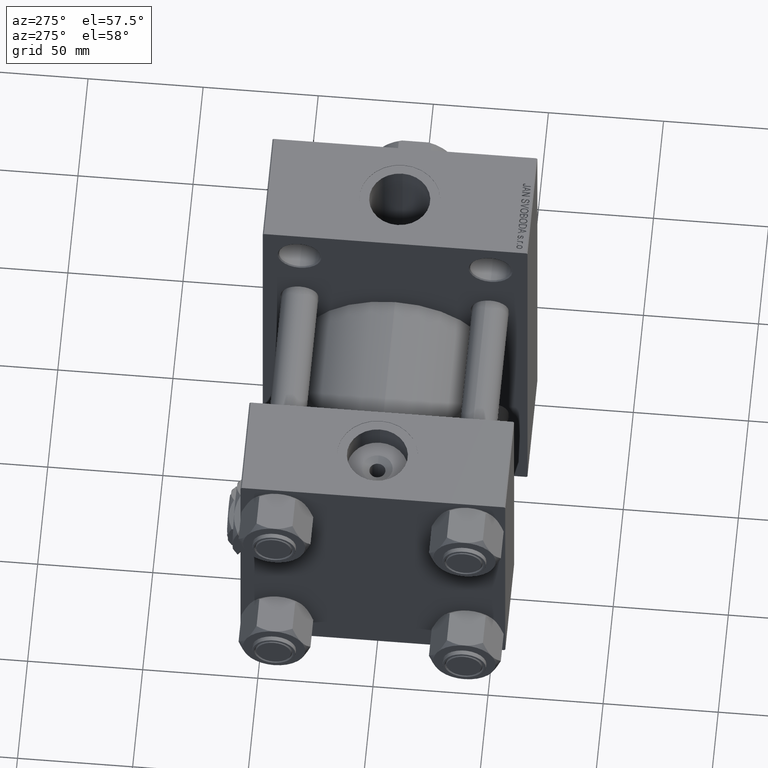
[diagram: clean part render]
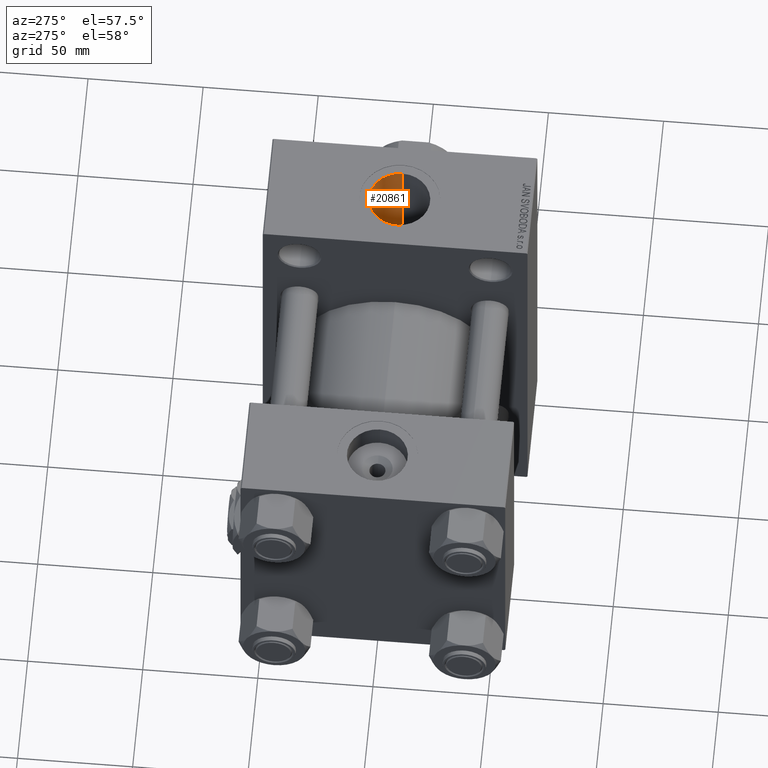
[diagram: same view with one face highlighted and labeled with its STEP entity id]
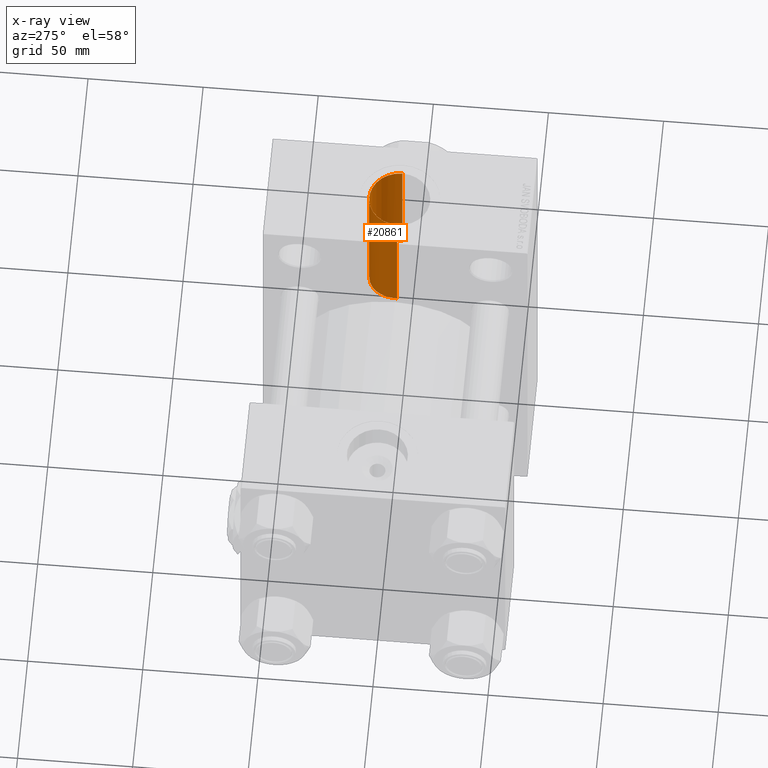
[diagram: x-ray of the same camera — body ghosted, the highlighted face saturated]
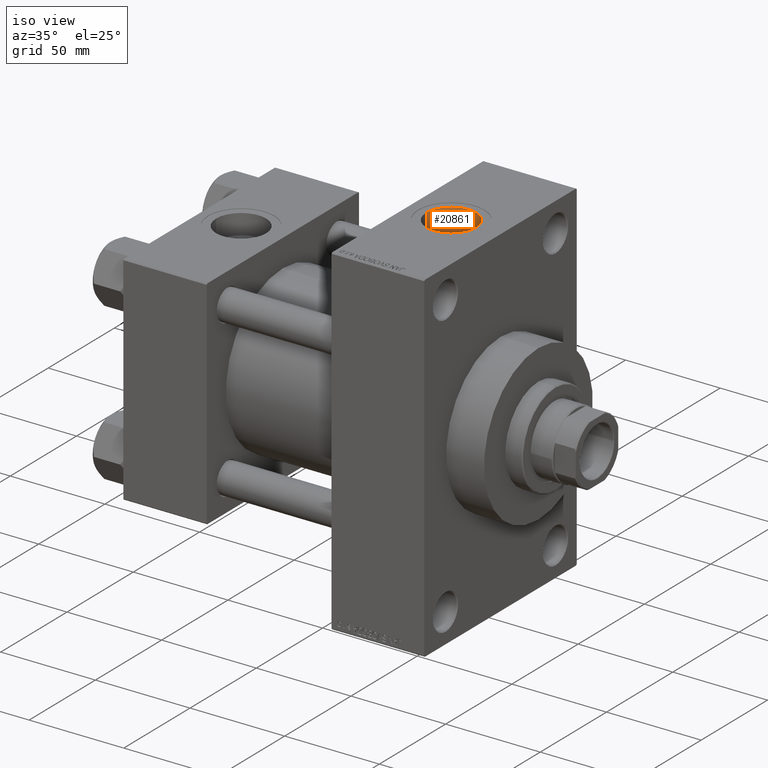
[diagram: same view with one face highlighted and labeled with its STEP entity id]
A machine part, auxiliary view. The second image highlights one B-rep face of the part: STEP entity #20861.
The next image is the same camera in x-ray: the body ghosted, the highlighted face saturated — about 4% of this face is hidden behind the body in this view.
A second angle (iso view) of the same face is appended — the face is thin or edge-on in the first view.
In plain terms, the highlighted cylindrical surface (edge-blend (fillet) strip) has radius 13.22 mm, axis along (0, 0, -1).
Its self-contained STEP definition (entity closure, byte-faithful):
#187 = CARTESIAN_POINT ( 'NONE',  ( 146.1379817546421691, 1.518265865167179207, 35.96994912351961204 ) ) ;
#690 = CARTESIAN_POINT ( 'NONE',  ( 138.5945103277782380, 12.00118958920803358, 33.94198458417640296 ) ) ;
#1151 = CARTESIAN_POINT ( 'NONE',  ( 133.2851615108020553, 13.22613998524883705, 27.48307289366608686 ) ) ;
#1636 = CARTESIAN_POINT ( 'NONE',  ( 120.3594029954051905, 3.901785162874668700, 30.25300952143916078 ) ) ;
#2578 = VERTEX_POINT ( 'NONE', #17248 ) ;
#3687 = CARTESIAN_POINT ( 'NONE',  ( 146.0893087182808188, 1.892035420910301413, 35.95216273564661691 ) ) ;
#4220 = FACE_OUTER_BOUND ( 'NONE', #8702, .T. ) ;
#4523 = ORIENTED_EDGE ( 'NONE', *, *, #47169, .F. ) ;
#4893 = CARTESIAN_POINT ( 'NONE',  ( 126.2405905081905644, 11.37158902866327814, 28.30223178644141413 ) ) ;
#7336 = EDGE_CURVE ( 'NONE', #28247, #2578, #30121, .T. ) ;
#7438 = CARTESIAN_POINT ( 'NONE',  ( 136.4867003901545388, 12.77473711426743463, 33.65761171941714736 ) ) ;
#8641 = CARTESIAN_POINT ( 'NONE',  ( 125.0371891369869957, 10.56380609296689244, 28.61398279029831215 ) ) ;
#8702 = EDGE_LOOP ( 'NONE', ( #4523, #19163, #47742, #11129, #22175, #34461 ) ) ;
#9136 = CARTESIAN_POINT ( 'NONE',  ( 122.9260598174467134, 8.574286465039120841, 29.27263374885120584 ) ) ;
#9203 = VECTOR ( 'NONE', #27749, 1000.000000000000000 ) ;
#9614 = CARTESIAN_POINT ( 'NONE',  ( 122.0260244560768399, 7.434870375886652560, 29.59044782374041560 ) ) ;
#11129 = ORIENTED_EDGE ( 'NONE', *, *, #29228, .T. ) ;
#11439 = CARTESIAN_POINT ( 'NONE',  ( 145.3223465543050565, 4.803346231252604071, 35.67993160896549654 ) ) ;
#11755 = VERTEX_POINT ( 'NONE', #19735 ) ;
#11988 = CARTESIAN_POINT ( 'NONE',  ( 135.7400000000000091, 12.93293470176046789, 112.7999999999999829 ) ) ;
#12646 = CARTESIAN_POINT ( 'NONE',  ( 121.5110741800254033, 6.613878971456260913, 29.78798023624082703 ) ) ;
#13038 = CARTESIAN_POINT ( 'NONE',  ( 146.2200000000000273, -9.241894346338509984E-15, 89.79999999999998295 ) ) ;
#13130 = CARTESIAN_POINT ( 'NONE',  ( 120.6830193899776873, 4.827070409900206194, 30.11922814116230995 ) ) ;
#13580 = VERTEX_POINT ( 'NONE', #13038 ) ;
#13604 = CARTESIAN_POINT ( 'NONE',  ( 123.2493793498786232, 8.940352169284475181, 29.16250894268883087 ) ) ;
#14094 = CARTESIAN_POINT ( 'NONE',  ( 119.7800000000000011, -1.086087741481131350E-14, 112.7999999999999829 ) ) ;
#15189 = CARTESIAN_POINT ( 'NONE',  ( 141.1482271659914431, 10.43671964436604682, 34.45770319535726145 ) ) ;
#15330 = AXIS2_PLACEMENT_3D ( 'NONE', #38454, #16181, #39212 ) ;
#15932 = CARTESIAN_POINT ( 'NONE',  ( 140.5493998682713084, 10.87852352895258434, 34.31951962323488914 ) ) ;
#16181 = DIRECTION ( 'NONE',  ( -0.000000000000000000, -0.000000000000000000, -1.000000000000000000 ) ) ;
#16399 = CARTESIAN_POINT ( 'NONE',  ( 133.7777193278498942, 13.20633922326214638, 27.49264203546940522 ) ) ;
#16645 = CARTESIAN_POINT ( 'NONE',  ( 119.8074965746004494, 0.9872482238805195820, 30.48805017778670390 ) ) ;
#16890 = CARTESIAN_POINT ( 'NONE',  ( 124.2896176093950658, 9.956384615881475497, 28.83096279477900836 ) ) ;
#17132 = CARTESIAN_POINT ( 'NONE',  ( 119.7800000000000153, 0.4930897905089530742, 30.50000000000000000 ) ) ;
#17248 = CARTESIAN_POINT ( 'NONE',  ( 119.7800000000000011, 3.735152335644797090E-15, 30.50000000000000000 ) ) ;
#18329 = VECTOR ( 'NONE', #29869, 1000.000000000000000 ) ;
#19163 = ORIENTED_EDGE ( 'NONE', *, *, #35441, .F. ) ;
#19323 = CIRCLE ( 'NONE', #15330, 13.22000000000000952 ) ;
#19707 = CARTESIAN_POINT ( 'NONE',  ( 135.7400000000000091, 12.93293470176046789, 33.59671412504502541 ) ) ;
#19735 = CARTESIAN_POINT ( 'NONE',  ( 135.7399999999999523, 12.93293470176048032, 27.62225914004861949 ) ) ;
#20160 = CARTESIAN_POINT ( 'NONE',  ( 130.3256342958763412, 12.95594869095344137, 27.61177267963251580 ) ) ;
#20861 = ADVANCED_FACE ( 'NONE', ( #4220 ), #35505, .F. ) ;
#20888 = CARTESIAN_POINT ( 'NONE',  ( 127.9827127633823238, 12.27015841204414492, 27.92701712990832519 ) ) ;
#22175 = ORIENTED_EDGE ( 'NONE', *, *, #40694, .F. ) ;
#23723 = LINE ( 'NONE', #23979, #9203 ) ;
#23902 = CARTESIAN_POINT ( 'NONE',  ( 125.4271501200176289, 10.84687044312921422, 28.50745100355764805 ) ) ;
#23979 = CARTESIAN_POINT ( 'NONE',  ( 146.2200000000000273, -9.241894346338509984E-15, 112.7999999999999829 ) ) ;
#24405 = CARTESIAN_POINT ( 'NONE',  ( 126.6661582615323312, 11.61426874580966384, 28.20310319464547533 ) ) ;
#24644 = CARTESIAN_POINT ( 'NONE',  ( 130.8119409645370581, 13.04724532387754010, 27.56854024737252118 ) ) ;
#26464 = CARTESIAN_POINT ( 'NONE',  ( 144.6983450057128380, 6.168928695871318979, 35.46904263421720316 ) ) ;
#26514 = LINE ( 'NONE', #11988, #27469 ) ;
#26710 = CARTESIAN_POINT ( 'NONE',  ( 146.2200000000000557, 0.3819698288429393962, 36.00000000000000000 ) ) ;
#26959 = CARTESIAN_POINT ( 'NONE',  ( 143.0210832298416221, 8.630590761265732880, 34.95143037011762743 ) ) ;
#27210 = CARTESIAN_POINT ( 'NONE',  ( 142.2544909056830136, 9.447833359205604964, 34.73924717178599764 ) ) ;
#27469 = VECTOR ( 'NONE', #39018, 1000.000000000000000 ) ;
#27749 = DIRECTION ( 'NONE',  ( 0.000000000000000000, 0.000000000000000000, -1.000000000000000000 ) ) ;
#27761 = CARTESIAN_POINT ( 'NONE',  ( 133.0000000000000000, -1.086087741481131350E-14, 112.7999999999999829 ) ) ;
#27912 = CARTESIAN_POINT ( 'NONE',  ( 135.2536187678447277, 13.03598049970485384, 27.57401237756085877 ) ) ;
#28247 = VERTEX_POINT ( 'NONE', #33278 ) ;
#28640 = CARTESIAN_POINT ( 'NONE',  ( 120.8710626762529188, 5.282033915368367083, 30.04254330308663157 ) ) ;
#29228 = EDGE_CURVE ( 'NONE', #2578, #11755, #34836, .T. ) ;
#29869 = DIRECTION ( 'NONE',  ( 0.000000000000000000, 0.000000000000000000, -1.000000000000000000 ) ) ;
#30121 = LINE ( 'NONE', #14094, #18329 ) ;
#31403 = B_SPLINE_CURVE_WITH_KNOTS ( 'NONE', 3,
 ( #19707, #7438, #34457, #690, #34966, #15932, #15189, #45466, #27210, #45717, #26959, #34210, #42463, #26464, #38215, #37973, #11439, #49460, #45966, #3687, #187, #38712, #26710, #42211 ),
 .UNSPECIFIED., .F., .F.,
 ( 4, 2, 2, 2, 2, 2, 2, 2, 2, 2, 2, 4 ),
 ( 0.000000000000000000, 0.002262540966026163961, 0.004525081932052327921, 0.006787622898078491882, 0.007918893381091541769, 0.009050163864104589923, 0.01131270483013063592, 0.01244397531314365979, 0.01357524579615668192, 0.01583778676218276088, 0.01696905724519580036, 0.01810032772820883984 ),
 .UNSPECIFIED. ) ;
#31672 = CARTESIAN_POINT ( 'NONE',  ( 134.7607663062244967, 13.11151955524789869, 27.53798861069347836 ) ) ;
#32163 = CARTESIAN_POINT ( 'NONE',  ( 128.8969839307879113, 12.60537237624625284, 27.77446624569849121 ) ) ;
#33278 = CARTESIAN_POINT ( 'NONE',  ( 119.7800000000000011, -1.086087741481131350E-14, 89.79999999999998295 ) ) ;
#34210 = CARTESIAN_POINT ( 'NONE',  ( 143.7312113704628018, 7.757108125705393320, 35.15943117783078264 ) ) ;
#34343 = VERTEX_POINT ( 'NONE', #38506 ) ;
#34457 = CARTESIAN_POINT ( 'NONE',  ( 137.2060821151613368, 12.55531642788236191, 33.74093801992368213 ) ) ;
#34461 = ORIENTED_EDGE ( 'NONE', *, *, #42010, .T. ) ;
#34836 = B_SPLINE_CURVE_WITH_KNOTS ( 'NONE', 3,
 ( #35670, #17132, #16645, #43405, #47402, #43881, #1636, #13130, #28640, #12646, #9614, #9136, #13604, #42926, #16890, #8641, #23902, #4893, #24405, #20888, #32163, #20160, #24644, #35417, #39907, #1151, #16399, #31672, #27912, #43167 ),
 .UNSPECIFIED., .F., .F.,
 ( 4, 2, 2, 2, 2, 2, 2, 2, 2, 2, 2, 2, 2, 2, 4 ),
 ( 0.04185757538675117378, 0.04333653936425789499, 0.04481550334176462314, 0.04629446731927134434, 0.04777343129677806555, 0.05073135925179152877, 0.05221032322929827774, 0.05368928720680501976, 0.05516825118431176178, 0.05664721516181851074, 0.05960514311683192540, 0.06108410709433867436, 0.06256307107184543026, 0.06404203504935218616, 0.06552099902685892818 ),
 .UNSPECIFIED. ) ;
#34966 = CARTESIAN_POINT ( 'NONE',  ( 139.2649626807106813, 11.66558850424325300, 34.06003150599316598 ) ) ;
#35254 = DIRECTION ( 'NONE',  ( 0.000000000000000000, 0.000000000000000000, -1.000000000000000000 ) ) ;
#35417 = CARTESIAN_POINT ( 'NONE',  ( 131.8033419719260166, 13.17521242515510771, 27.50761348180683896 ) ) ;
#35441 = EDGE_CURVE ( 'NONE', #28247, #13580, #19323, .T. ) ;
#35505 = CYLINDRICAL_SURFACE ( 'NONE', #36327, 13.22000000000000952 ) ;
#35670 = CARTESIAN_POINT ( 'NONE',  ( 119.7800000000000011, 3.735152335644797090E-15, 30.50000000000000000 ) ) ;
#36327 = AXIS2_PLACEMENT_3D ( 'NONE', #27761, #35254, #42502 ) ;
#37572 = CARTESIAN_POINT ( 'NONE',  ( 146.2200000000000273, 4.408731805096607676E-15, 36.00000000000000000 ) ) ;
#37973 = CARTESIAN_POINT ( 'NONE',  ( 145.1796393711020414, 5.154167772853381457, 35.63079688237383635 ) ) ;
#38215 = CARTESIAN_POINT ( 'NONE',  ( 144.8678405391319188, 5.836387716606548537, 35.52542343625400179 ) ) ;
#38454 = CARTESIAN_POINT ( 'NONE',  ( 133.0000000000000000, -1.086087741481131350E-14, 89.79999999999998295 ) ) ;
#38506 = CARTESIAN_POINT ( 'NONE',  ( 135.7400000000000091, 12.93293470176046789, 33.59671412504502541 ) ) ;
#38712 = CARTESIAN_POINT ( 'NONE',  ( 146.2033327349466276, 0.7640029534828008950, 35.99386990409605147 ) ) ;
#39018 = DIRECTION ( 'NONE',  ( 0.000000000000000000, 0.000000000000000000, -1.000000000000000000 ) ) ;
#39212 = DIRECTION ( 'NONE',  ( 1.000000000000000000, 0.000000000000000000, 0.000000000000000000 ) ) ;
#39380 = VERTEX_POINT ( 'NONE', #37572 ) ;
#39907 = CARTESIAN_POINT ( 'NONE',  ( 132.2979727381281521, 13.21057355757992013, 27.49055875873991539 ) ) ;
#40694 = EDGE_CURVE ( 'NONE', #34343, #11755, #26514, .T. ) ;
#42010 = EDGE_CURVE ( 'NONE', #34343, #39380, #31403, .T. ) ;
#42211 = CARTESIAN_POINT ( 'NONE',  ( 146.2200000000000273, 4.408731805096607676E-15, 36.00000000000000000 ) ) ;
#42463 = CARTESIAN_POINT ( 'NONE',  ( 144.1498648550291932, 7.141648424859581290, 35.29067191690106142 ) ) ;
#42502 = DIRECTION ( 'NONE',  ( -1.000000000000000000, 0.000000000000000000, 0.000000000000000000 ) ) ;
#42926 = CARTESIAN_POINT ( 'NONE',  ( 123.9320074090819759, 9.632030437268079837, 28.94142039359465812 ) ) ;
#43167 = CARTESIAN_POINT ( 'NONE',  ( 135.7399999999999523, 12.93293470176048032, 27.62225914004861949 ) ) ;
#43405 = CARTESIAN_POINT ( 'NONE',  ( 119.9192796940202044, 1.977766912824118872, 30.43984725220107990 ) ) ;
#43881 = CARTESIAN_POINT ( 'NONE',  ( 120.2233236804503349, 3.430416358514360997, 30.31031417239466919 ) ) ;
#45466 = CARTESIAN_POINT ( 'NONE',  ( 141.9855853527145939, 9.703877399782271596, 34.66842035655219689 ) ) ;
#45717 = CARTESIAN_POINT ( 'NONE',  ( 142.7718099334105659, 8.911727539146795607, 34.88062444271565710 ) ) ;
#45966 = CARTESIAN_POINT ( 'NONE',  ( 145.8962416663182751, 3.003490287928888058, 35.88217189229081328 ) ) ;
#47169 = EDGE_CURVE ( 'NONE', #13580, #39380, #23723, .T. ) ;
#47402 = CARTESIAN_POINT ( 'NONE',  ( 120.0034013176459951, 2.469744289827823014, 30.40367189608675247 ) ) ;
#47742 = ORIENTED_EDGE ( 'NONE', *, *, #7336, .T. ) ;
#49460 = CARTESIAN_POINT ( 'NONE',  ( 145.7051556392588338, 3.731388303156867980, 35.81334052950152369 ) ) ;